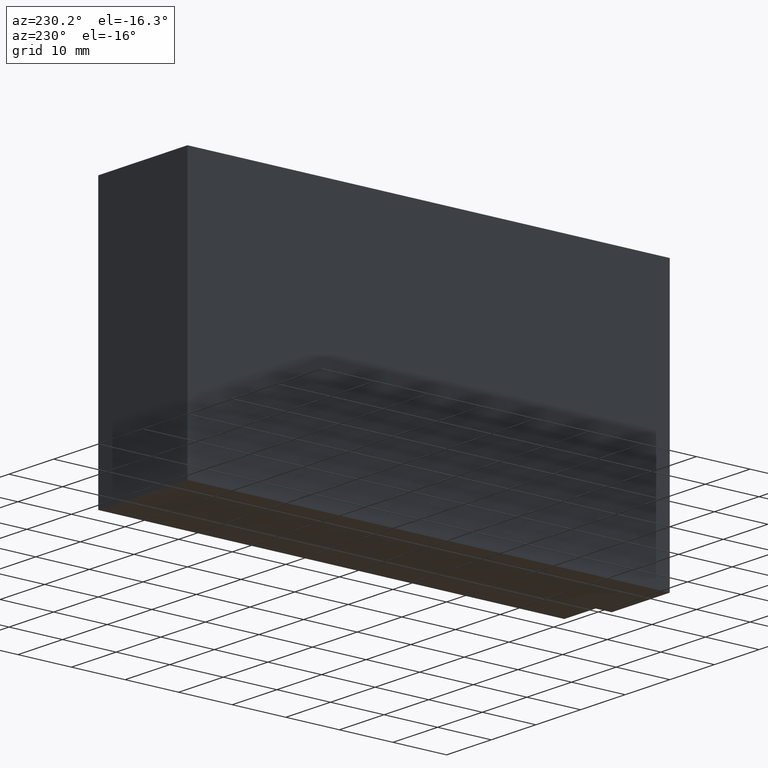
[diagram: clean part render]
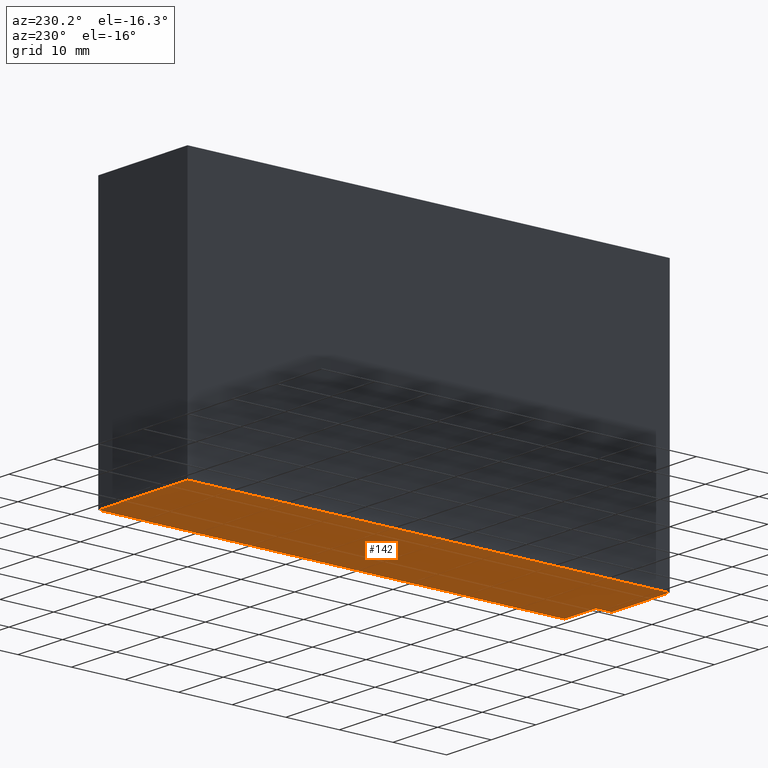
[diagram: same view with one face highlighted and labeled with its STEP entity id]
A machine part, auxiliary view. The second image highlights one B-rep face of the part: STEP entity #142.
In plain terms, the highlighted planar face has unit normal (0, 0, 1).
Its self-contained STEP definition (entity closure, byte-faithful):
#16=FACE_OUTER_BOUND('',#24,.T.);
#24=EDGE_LOOP('',(#98,#99,#100,#101,#102,#103));
#32=LINE('',#218,#50);
#33=LINE('',#220,#51);
#34=LINE('',#222,#52);
#35=LINE('',#224,#53);
#36=LINE('',#226,#54);
#37=LINE('',#227,#55);
#50=VECTOR('',#182,10.);
#51=VECTOR('',#183,10.);
#52=VECTOR('',#184,10.);
#53=VECTOR('',#185,10.);
#54=VECTOR('',#186,10.);
#55=VECTOR('',#187,10.);
#68=VERTEX_POINT('',#216);
#69=VERTEX_POINT('',#217);
#70=VERTEX_POINT('',#219);
#71=VERTEX_POINT('',#221);
#72=VERTEX_POINT('',#223);
#73=VERTEX_POINT('',#225);
#80=EDGE_CURVE('',#68,#69,#32,.T.);
#81=EDGE_CURVE('',#70,#68,#33,.T.);
#82=EDGE_CURVE('',#71,#70,#34,.T.);
#83=EDGE_CURVE('',#72,#71,#35,.T.);
#84=EDGE_CURVE('',#73,#72,#36,.T.);
#85=EDGE_CURVE('',#69,#73,#37,.T.);
#98=ORIENTED_EDGE('',*,*,#80,.F.);
#99=ORIENTED_EDGE('',*,*,#81,.F.);
#100=ORIENTED_EDGE('',*,*,#82,.F.);
#101=ORIENTED_EDGE('',*,*,#83,.F.);
#102=ORIENTED_EDGE('',*,*,#84,.F.);
#103=ORIENTED_EDGE('',*,*,#85,.F.);
#134=PLANE('',#170);
#142=ADVANCED_FACE('',(#16),#134,.F.);
#170=AXIS2_PLACEMENT_3D('',#215,#180,#181);
#180=DIRECTION('center_axis',(0.,0.,1.));
#181=DIRECTION('ref_axis',(1.,0.,0.));
#182=DIRECTION('',(5.18104078158407E-15,1.,0.));
#183=DIRECTION('',(1.,0.,0.));
#184=DIRECTION('',(0.,-1.,0.));
#185=DIRECTION('',(-1.,0.,0.));
#186=DIRECTION('',(-3.82835525732813E-16,1.,0.));
#187=DIRECTION('',(1.,0.,0.));
#215=CARTESIAN_POINT('Origin',(-0.0954545454545455,0.0954545454545403,-25.));
#216=CARTESIAN_POINT('',(3.00000000000002,-45.,-25.));
#217=CARTESIAN_POINT('',(3.00000000000004,-42.,-25.));
#218=CARTESIAN_POINT('',(3.00000000000002,-45.,-25.));
#219=CARTESIAN_POINT('',(-10.,-45.,-25.));
#220=CARTESIAN_POINT('',(-10.,-45.,-25.));
#221=CARTESIAN_POINT('',(-10.,45.,-25.));
#222=CARTESIAN_POINT('',(-10.,45.,-25.));
#223=CARTESIAN_POINT('',(9.99999999999999,45.,-25.));
#224=CARTESIAN_POINT('',(9.99999999999999,45.,-25.));
#225=CARTESIAN_POINT('',(10.,-42.,-25.));
#226=CARTESIAN_POINT('',(10.,-42.,-25.));
#227=CARTESIAN_POINT('',(3.00000000000004,-42.,-25.));